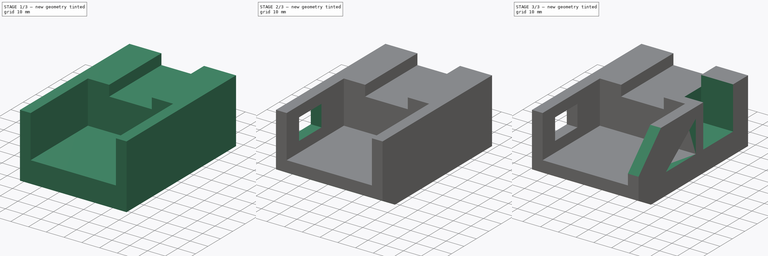
[diagram: build sequence overview — one tinted view per stage of 3, left to right]
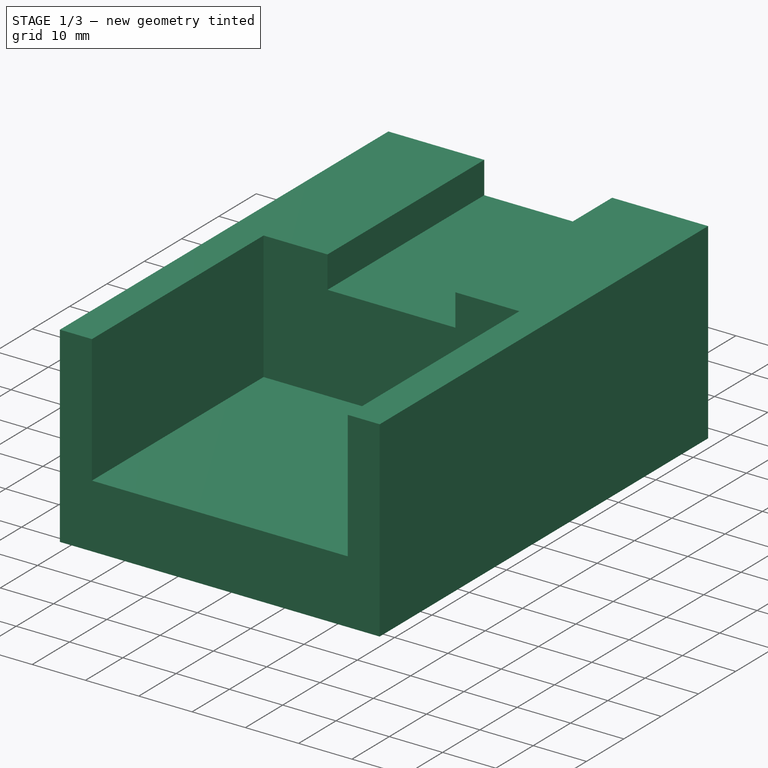
[diagram: stage 1 of 3 — iso view after this stage's code; geometry added in this stage tinted green]
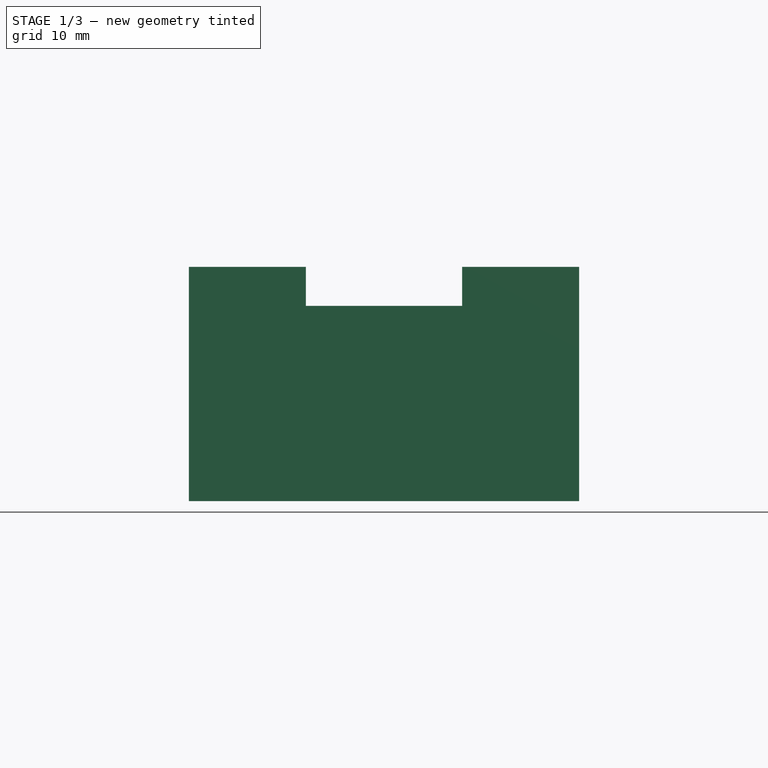
[diagram: stage 1 of 3 — front view after this stage's code; geometry added in this stage tinted green]
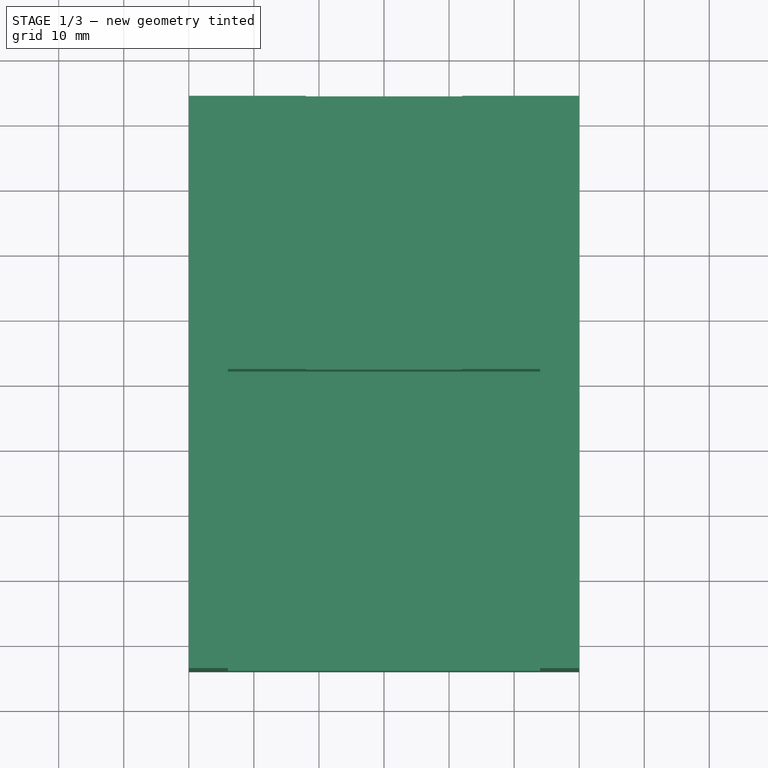
[diagram: stage 1 of 3 — top view after this stage's code; geometry added in this stage tinted green]
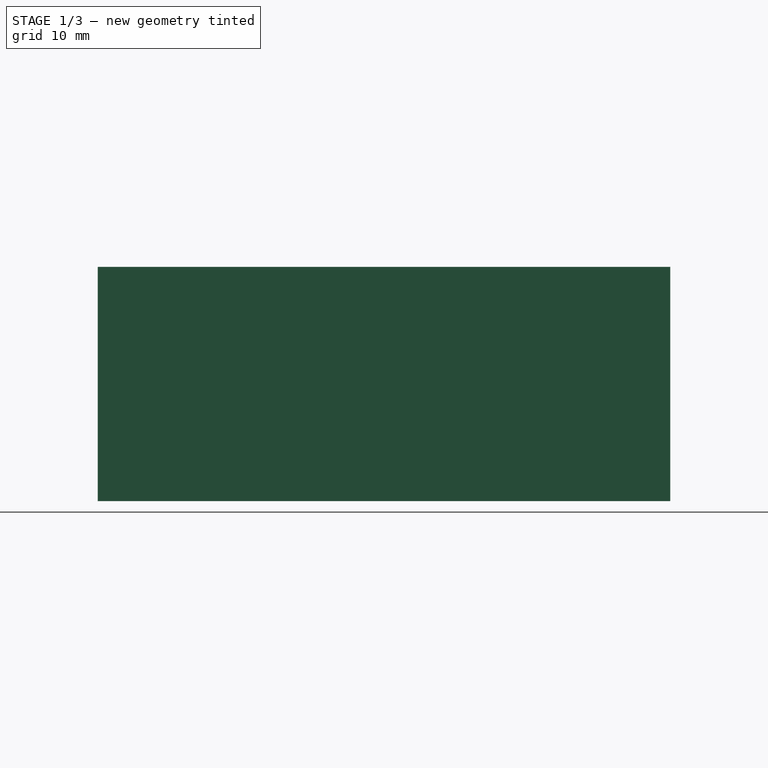
[diagram: stage 1 of 3 — right view after this stage's code; geometry added in this stage tinted green]
FCSTD DOCUMENT  (FreeCAD 0.16R)
Label: Fig 3.30 Final
License: All rights reserved
LicenseURL: http://en.wikipedia.org/wiki/All_rights_reserved
objects: Sketcher::SketchObject×8, PartDesign::Pocket×7, PartDesign::Pad×1
note: 24 computed .brp shape members not serialized (recipe doc carries the construction recipe); baked Part::Feature solids carry a one-line shape summary decoded from their .brp

FEATURE [Sketcher::SketchObject] Sketch
  sketch-geometry (4):
    g0: LineSegment StartX=-30 StartY=44 StartZ=0 EndX=30 EndY=44 EndZ=0
    g1: LineSegment StartX=30 StartY=44 StartZ=0 EndX=30 EndY=-44 EndZ=0
    g2: LineSegment StartX=30 StartY=-44 StartZ=0 EndX=-30 EndY=-44 EndZ=0
    g3: LineSegment StartX=-30 StartY=-44 StartZ=0 EndX=-30 EndY=44 EndZ=0
  constraints (12):
    c: Coincident(g0,g1)
    c: Coincident(g1,g2)
    c: Coincident(g2,g3)
    c: Coincident(g3,g0)
    c: Horizontal(g0)
    c: Horizontal(g2)
    c: Vertical(g1)
    c: Vertical(g3)
    c: DistanceY(g1,g1) = 88
    c: DistanceX(g0,g0) = 60
    c: Symmetric(g0,g0,g-2)
    c: Symmetric(g0,g2,g-1)
FEATURE [PartDesign::Pad] Pad
  Length = 36
  Length2 = 100
  Sketch = -> Sketch
  Type = 0
FEATURE [Sketcher::SketchObject] Sketch001
  ExternalGeometry = -> [Pad]
  Placement = pos=(0,0,36) rot=(0,0,1;0rad)
  Support = -> Pad [Face6]
  sketch-geometry (4):
    g0: LineSegment StartX=-24 StartY=-45.08 StartZ=0 EndX=24 EndY=-45.08 EndZ=0
    g1: LineSegment StartX=24 StartY=-45.08 StartZ=0 EndX=24 EndY=2 EndZ=0
    g2: LineSegment StartX=24 StartY=2 StartZ=0 EndX=-24 EndY=2 EndZ=0
    g3: LineSegment StartX=-24 StartY=2 StartZ=0 EndX=-24 EndY=-45.08 EndZ=0
  constraints (11):
    c: Coincident(g0,g1)
    c: Coincident(g1,g2)
    c: Coincident(g2,g3)
    c: Coincident(g3,g0)
    c: Horizontal(g0)
    c: Horizontal(g2)
    c: Vertical(g1)
    c: Vertical(g3)
    c: DistanceX(g-5,g2) = 6
    c: DistanceX(g0,g-5) = 6
    c: DistanceY(g-5,g2) = 46
FEATURE [PartDesign::Pocket] Pocket
  Length = 24
  Sketch = -> Sketch001
  Type = 0
FEATURE [Sketcher::SketchObject] Sketch002
  ExternalGeometry = -> [Pocket]
  Placement = pos=(0,2,0) rot=(1,0,0;1.5708rad)
  Support = -> Pocket [Face8]
  sketch-geometry (4):
    g0: LineSegment StartX=-12 StartY=41.4 StartZ=0 EndX=12 EndY=41.4 EndZ=0
    g1: LineSegment StartX=12 StartY=41.4 StartZ=0 EndX=12 EndY=30 EndZ=0
    g2: LineSegment StartX=12 StartY=30 StartZ=0 EndX=-12 EndY=30 EndZ=0
    g3: LineSegment StartX=-12 StartY=30 StartZ=0 EndX=-12 EndY=41.4 EndZ=0
  constraints (11):
    c: Coincident(g0,g1)
    c: Coincident(g1,g2)
    c: Coincident(g2,g3)
    c: Coincident(g3,g0)
    c: Horizontal(g0)
    c: Horizontal(g2)
    c: Vertical(g1)
    c: Vertical(g3)
    c: Symmetric(g1,g2,g-2)
    c: DistanceX(g0,g0) = 24
    c: DistanceY(g1,g-3) = 6
FEATURE [PartDesign::Pocket] Pocket001
  Length = 5
  Sketch = -> Sketch002
  Type = 1
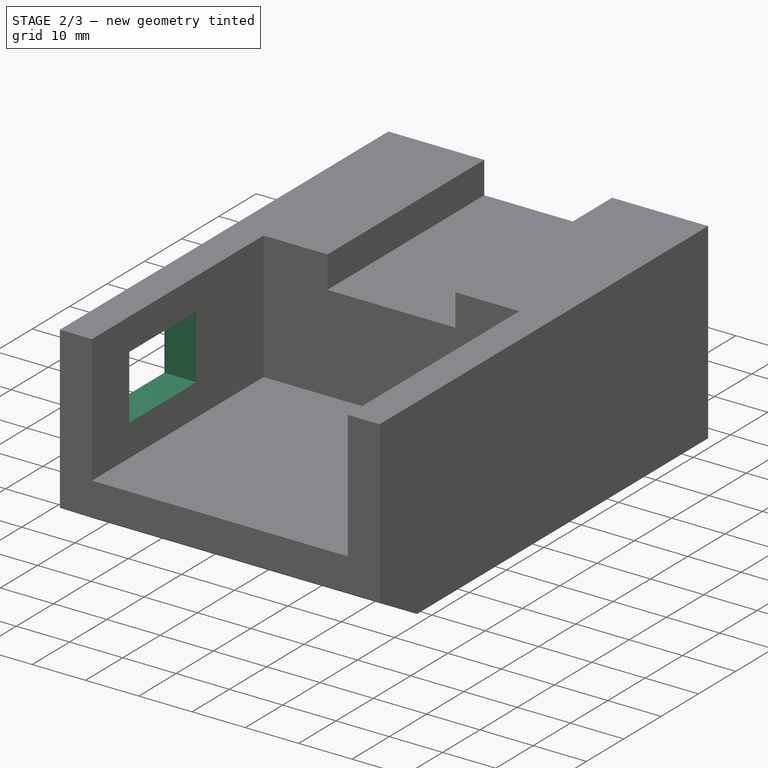
[diagram: stage 2 of 3 — iso view after this stage's code; geometry added in this stage tinted green]
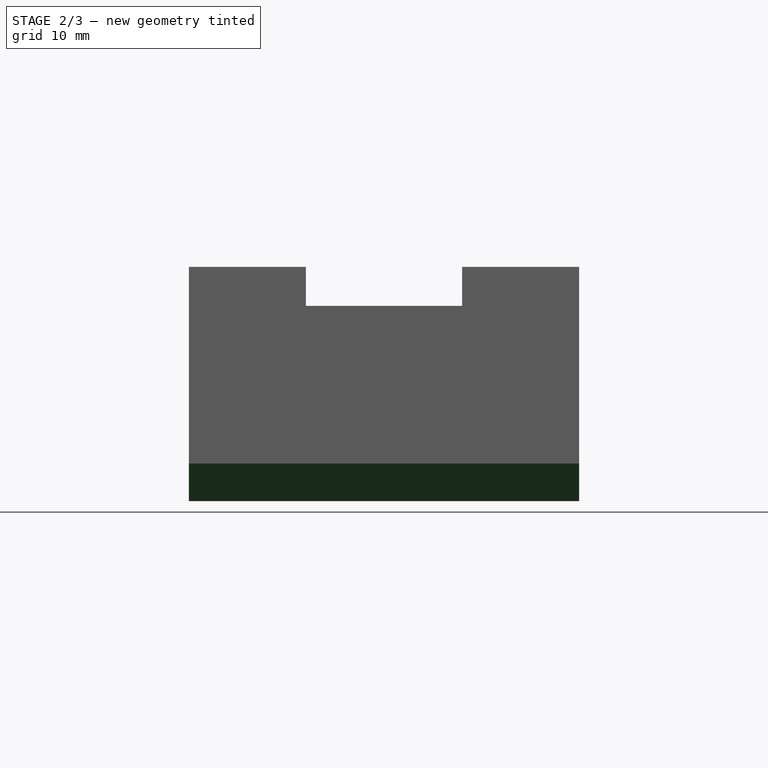
[diagram: stage 2 of 3 — front view after this stage's code; geometry added in this stage tinted green]
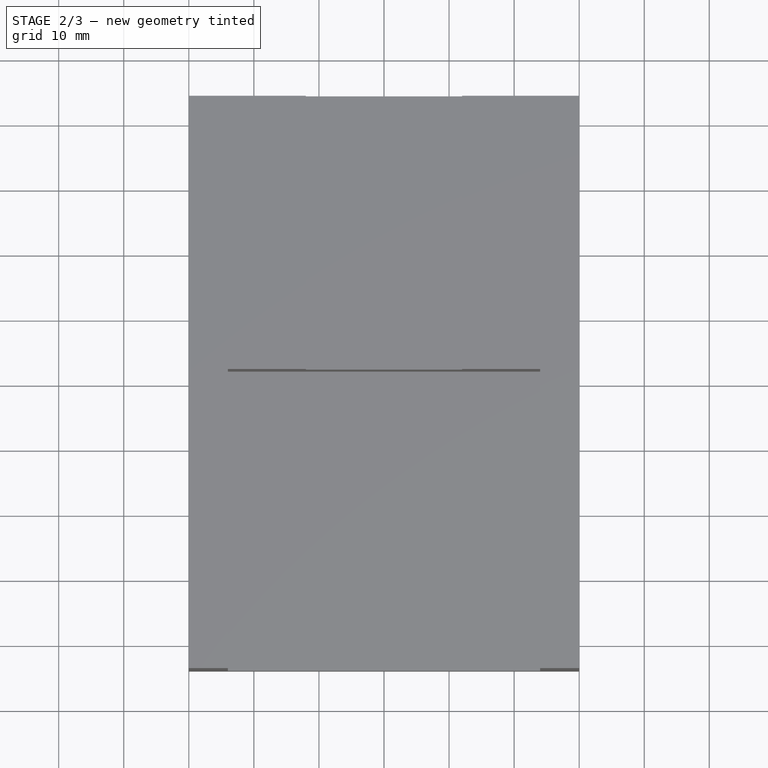
[diagram: stage 2 of 3 — top view after this stage's code; geometry added in this stage tinted green]
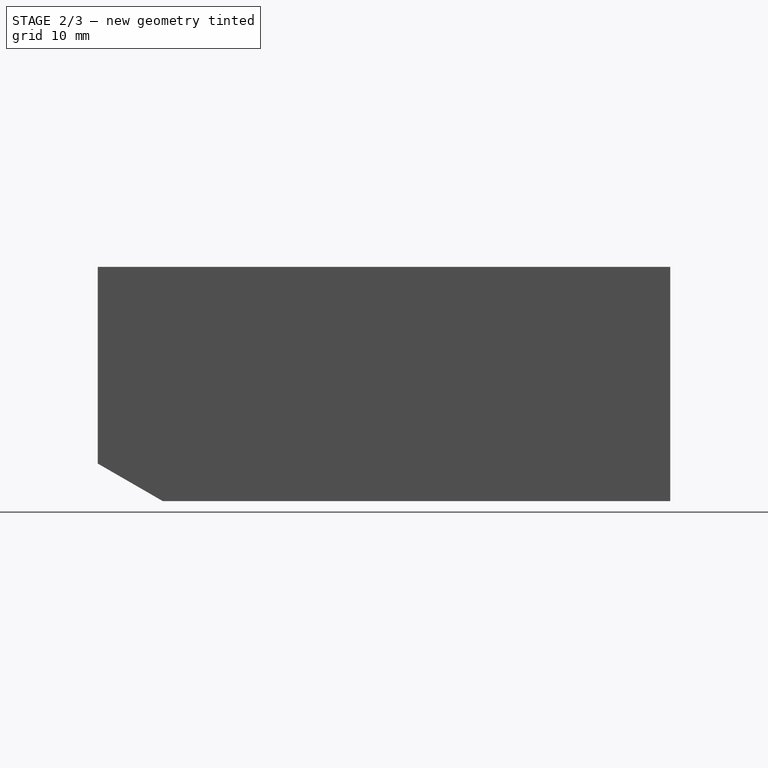
[diagram: stage 2 of 3 — right view after this stage's code; geometry added in this stage tinted green]
FEATURE [Sketcher::SketchObject] Sketch003
  ExternalGeometry = -> [Pocket001]
  Placement = pos=(-30,0,0) rot=(0.57735,-0.57735,-0.57735;2.0944rad)
  Support = -> Pocket001 [Face9]
  sketch-geometry (4):
    g0: LineSegment StartX=16 StartY=30 StartZ=0 EndX=34 EndY=30 EndZ=0
    g1: LineSegment StartX=34 StartY=30 StartZ=0 EndX=34 EndY=18 EndZ=0
    g2: LineSegment StartX=34 StartY=18 StartZ=0 EndX=16 EndY=18 EndZ=0
    g3: LineSegment StartX=16 StartY=18 StartZ=0 EndX=16 EndY=30 EndZ=0
  constraints (12):
    c: Coincident(g0,g1)
    c: Coincident(g1,g2)
    c: Coincident(g2,g3)
    c: Coincident(g3,g0)
    c: Horizontal(g0)
    c: Horizontal(g2)
    c: Vertical(g1)
    c: Vertical(g3)
    c: DistanceX(g-4,g0) = 60
    c: DistanceX(g0,g0) = 18
    c: DistanceY(g1,g0) = 12
    c: DistanceY(g0,g-4) = 6
FEATURE [PartDesign::Pocket] Pocket002
  Length = 10
  Sketch = -> Sketch003
  Type = 0
FEATURE [Sketcher::SketchObject] Sketch004
  ExternalGeometry = -> [Pocket002]
  Placement = pos=(30,0,0) rot=(0.57735,0.57735,0.57735;2.0944rad)
  Support = -> Pocket002 [Face3]
  sketch-geometry (4):
    g0: LineSegment [constr] StartX=44 StartY=0 StartZ=0 EndX=-34 EndY=0 EndZ=0
    g1: LineSegment StartX=-50.8097 StartY=9.70506 StartZ=0 EndX=-34 EndY=0 EndZ=0
    g2: LineSegment StartX=-34 StartY=0 StartZ=0 EndX=-50.8097 EndY=0 EndZ=0
    g3: LineSegment StartX=-50.8097 StartY=0 StartZ=0 EndX=-50.8097 EndY=9.70506 EndZ=0
  constraints (10):
    c: Coincident(g0,g-3)
    c: Horizontal(g0)
    c: DistanceX(g0,g0) = 78
    c: Coincident(g1,g2)
    c: Horizontal(g2)
    c: Coincident(g2,g3)
    c: Coincident(g3,g1)
    c: Vertical(g3)
    c: Angle(g1,g2) = 0.523599
    c: Coincident(g1,g0)
FEATURE [PartDesign::Pocket] Pocket003
  Length = 5
  Sketch = -> Sketch004
  Type = 1
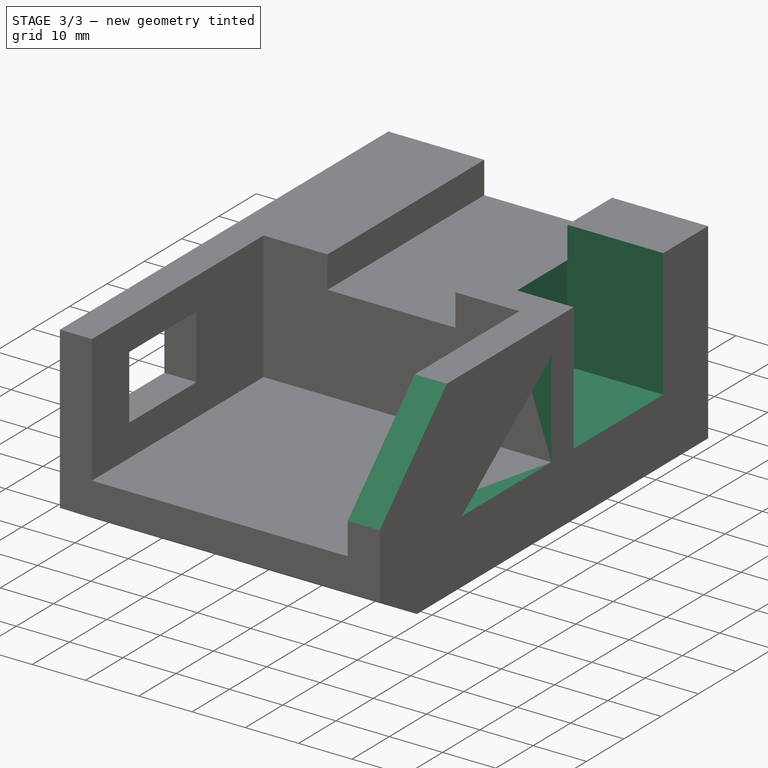
[diagram: stage 3 of 3 — iso view after this stage's code; geometry added in this stage tinted green]
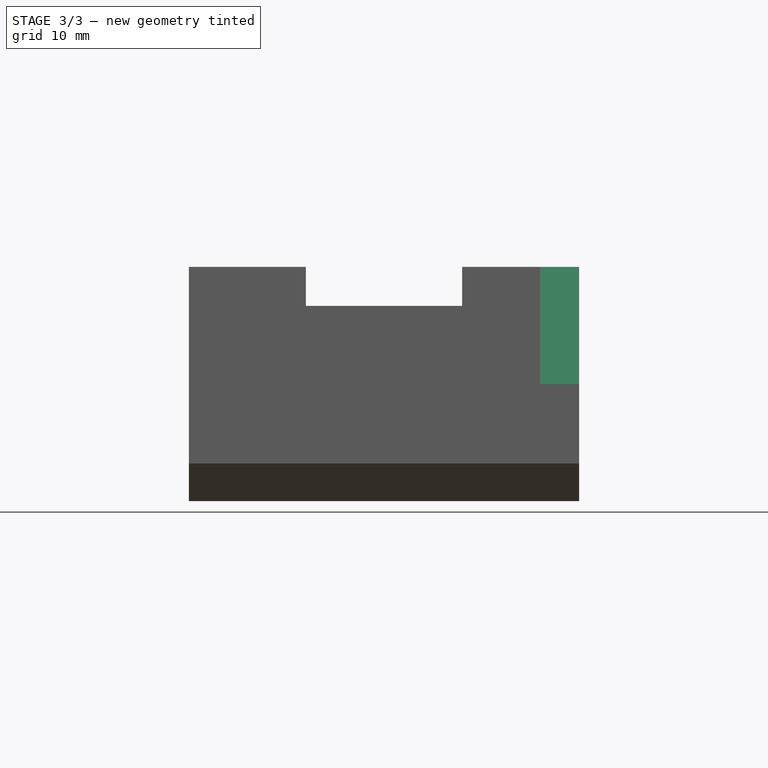
[diagram: stage 3 of 3 — front view after this stage's code; geometry added in this stage tinted green]
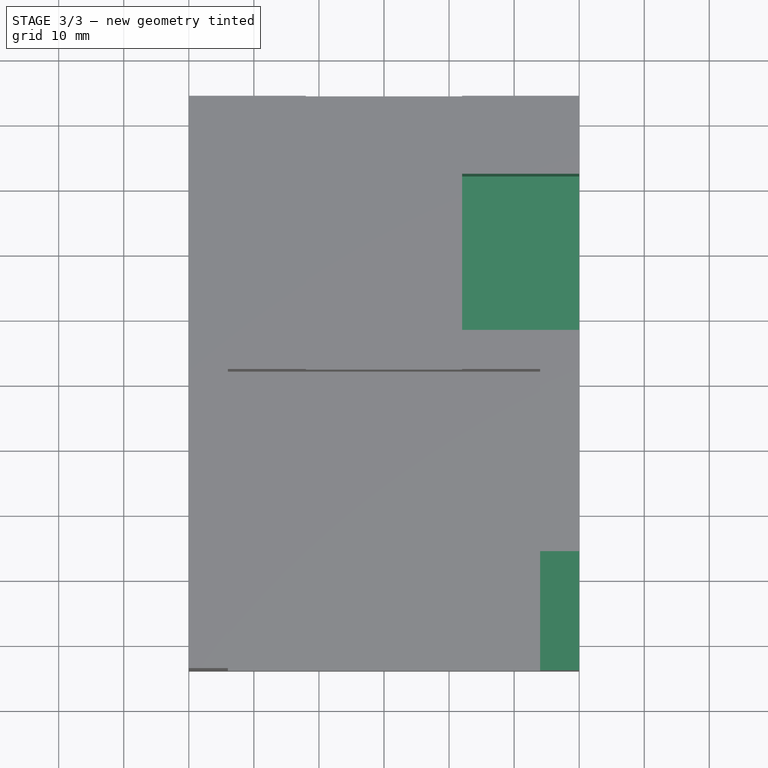
[diagram: stage 3 of 3 — top view after this stage's code; geometry added in this stage tinted green]
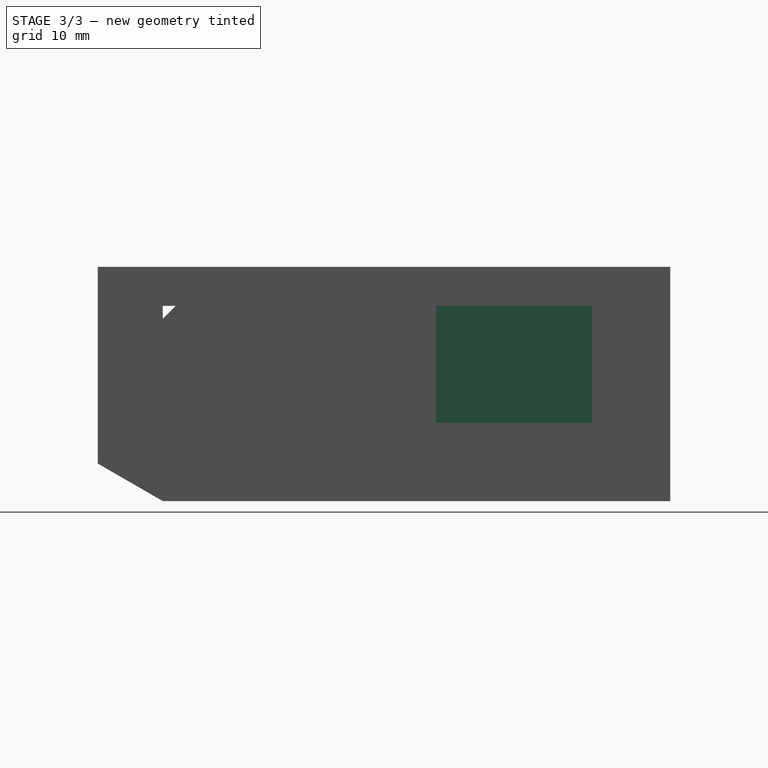
[diagram: stage 3 of 3 — right view after this stage's code; geometry added in this stage tinted green]
FEATURE [Sketcher::SketchObject] Sketch005
  ExternalGeometry = -> [Pocket003]
  Placement = pos=(30,0,0) rot=(0.57735,0.57735,0.57735;2.0944rad)
  Support = -> Pocket003 [Face3]
  sketch-geometry (3):
    g0: LineSegment StartX=-22 StartY=12 StartZ=0 EndX=2 EndY=30 EndZ=0
    g1: LineSegment StartX=2 StartY=30 StartZ=0 EndX=2 EndY=12 EndZ=0
    g2: LineSegment StartX=2 StartY=12 StartZ=0 EndX=-22 EndY=12 EndZ=0
  constraints (9):
    c: Coincident(g0,g1)
    c: Vertical(g1)
    c: Coincident(g1,g2)
    c: Horizontal(g2)
    c: Coincident(g0,g2)
    c: DistanceY(g0,g-3) = 6
    c: DistanceX(g-4,g0) = 12
    c: DistanceX(g0,g1) = 24
    c: DistanceY(g-4,g1) = 12
FEATURE [PartDesign::Pocket] Pocket004
  Length = 7
  Sketch = -> Sketch005
  Type = 0
FEATURE [Sketcher::SketchObject] Sketch006
  ExternalGeometry = -> [Pocket004]
  Placement = pos=(30,0,0) rot=(0.57735,0.57735,0.57735;2.0944rad)
  Support = -> Pocket004 [Face3]
  sketch-geometry (3):
    g0: LineSegment StartX=-44 StartY=36 StartZ=0 EndX=-44 EndY=18 EndZ=0
    g1: LineSegment StartX=-44 StartY=18 StartZ=0 EndX=-26 EndY=36 EndZ=0
    g2: LineSegment StartX=-26 StartY=36 StartZ=0 EndX=-44 EndY=36 EndZ=0
  constraints (8):
    c: Vertical(g0)
    c: Coincident(g0,g1)
    c: Coincident(g1,g2)
    c: Coincident(g2,g0)
    c: Horizontal(g2)
    c: DistanceX(g2,g2) = 18
    c: DistanceY(g0,g0) = 18
    c: Coincident(g0,g-4)
FEATURE [PartDesign::Pocket] Pocket005
  Length = 8
  Sketch = -> Sketch006
  Type = 0
FEATURE [Sketcher::SketchObject] Sketch007
  ExternalGeometry = -> [Pocket005]
  Placement = pos=(30,0,0) rot=(0.57735,0.57735,0.57735;2.0944rad)
  Support = -> Pocket005 [Face3]
  sketch-geometry (4):
    g0: LineSegment StartX=8 StartY=37.72 StartZ=0 EndX=32 EndY=37.72 EndZ=0
    g1: LineSegment StartX=32 StartY=37.72 StartZ=0 EndX=32 EndY=12 EndZ=0
    g2: LineSegment StartX=32 StartY=12 StartZ=0 EndX=8 EndY=12 EndZ=0
    g3: LineSegment StartX=8 StartY=12 StartZ=0 EndX=8 EndY=37.72 EndZ=0
  constraints (11):
    c: Coincident(g0,g1)
    c: Coincident(g1,g2)
    c: Coincident(g2,g3)
    c: Coincident(g3,g0)
    c: Horizontal(g0)
    c: Horizontal(g2)
    c: Vertical(g1)
    c: Vertical(g3)
    c: DistanceY(g-4,g1) = 12
    c: DistanceX(g1,g-4) = 12
    c: DistanceX(g2,g2) = 24
FEATURE [PartDesign::Pocket] Pocket006
  Length = 18
  Sketch = -> Sketch007
  Type = 0
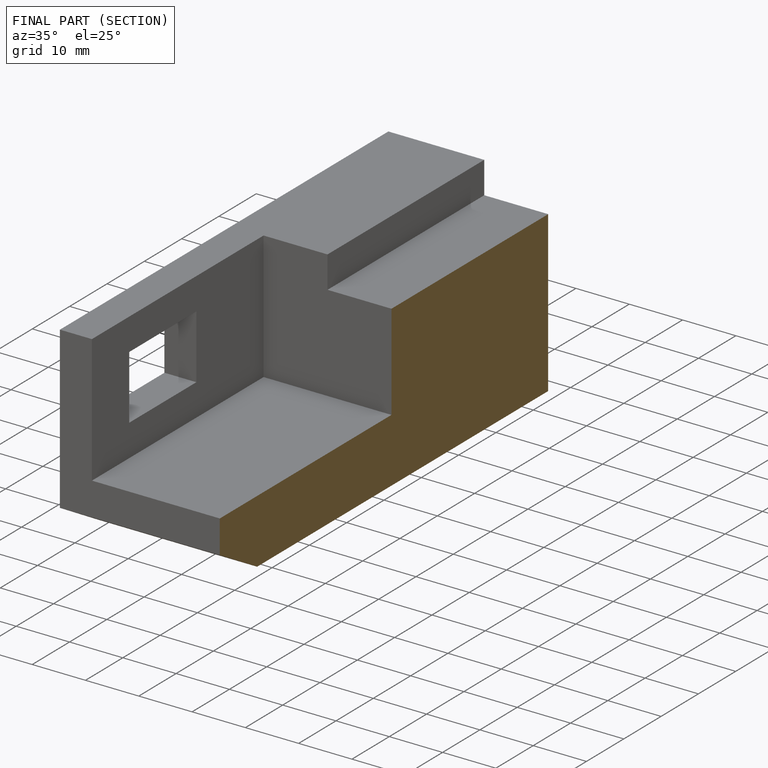
[diagram: finished part — half-section view (interior)]
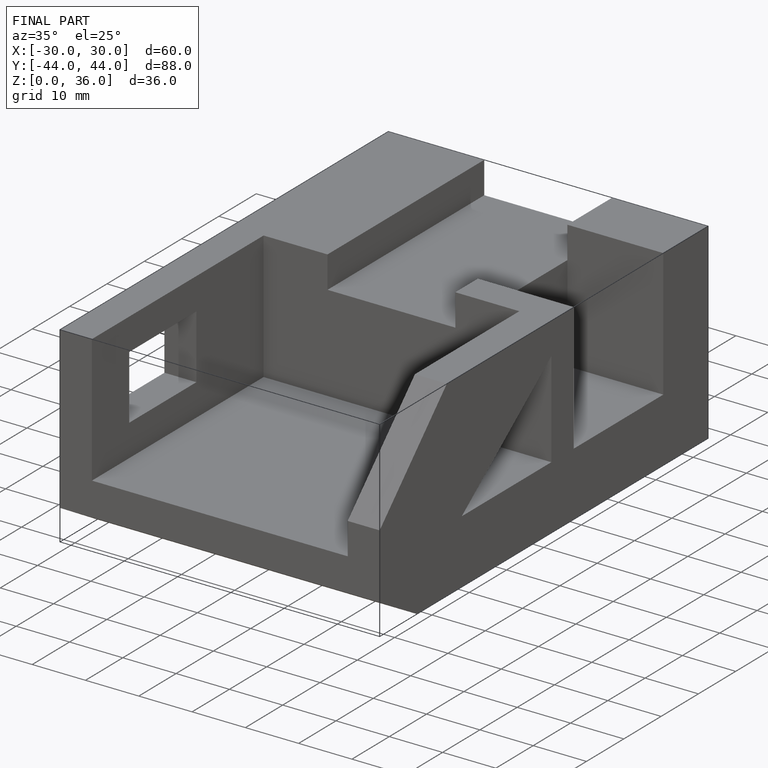
[diagram: finished part — iso view with bounding-box wireframe]
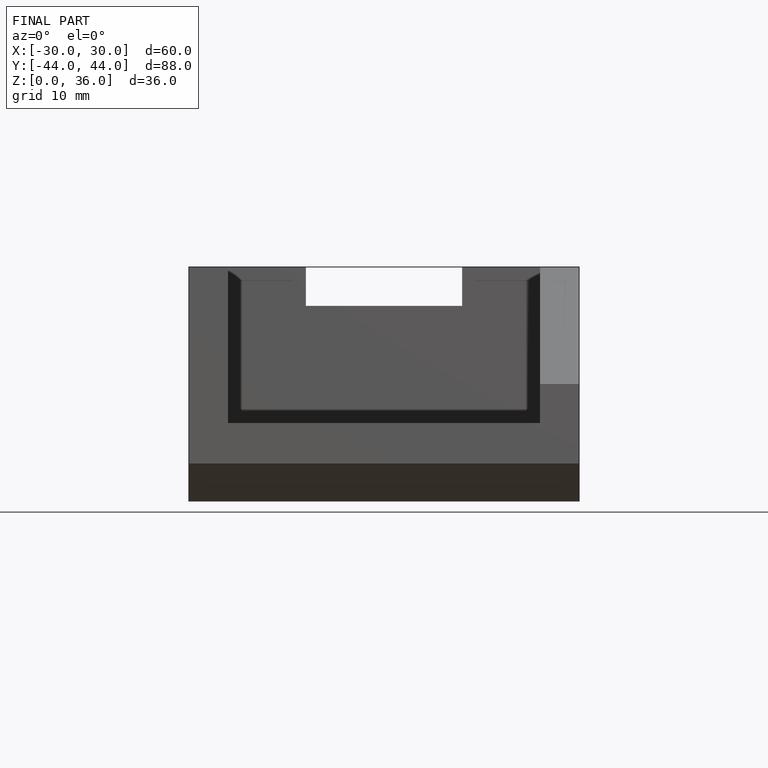
[diagram: finished part — front view with bounding-box wireframe]
